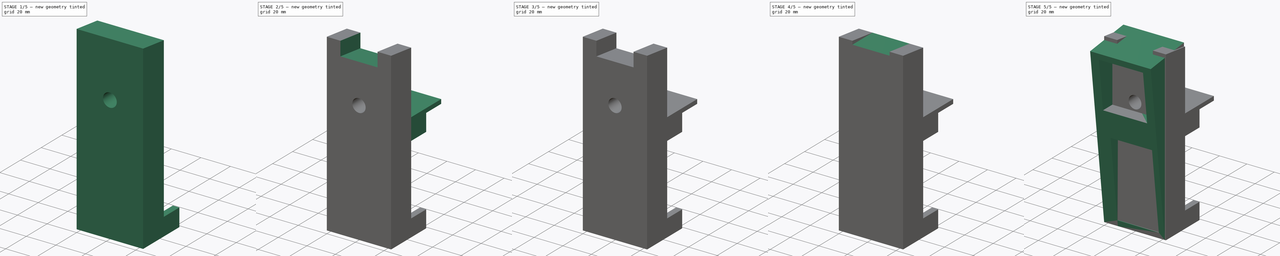
[diagram: build sequence overview — one tinted view per stage of 5, left to right]
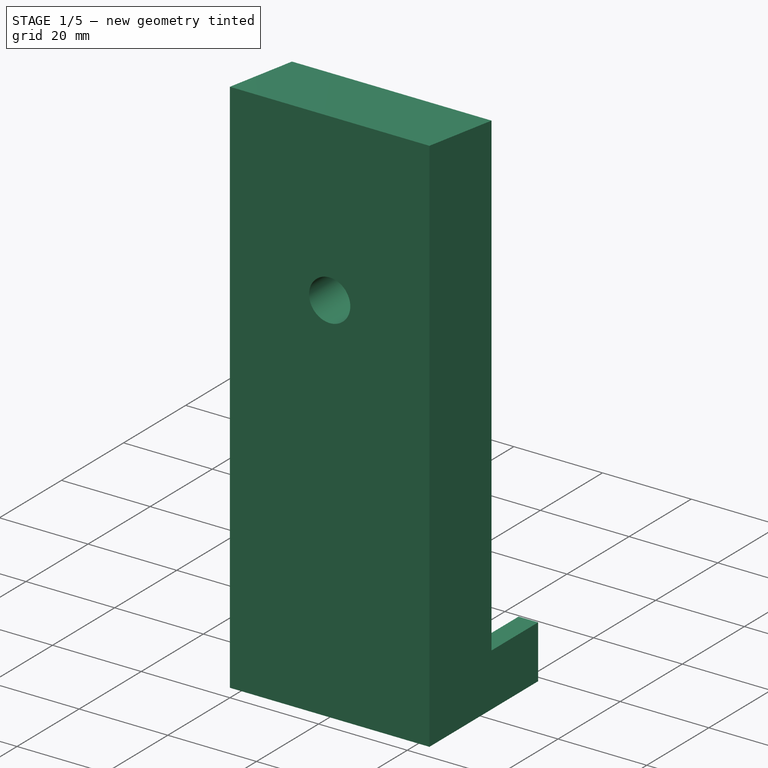
[diagram: stage 1 of 5 — iso view after this stage's code; geometry added in this stage tinted green]
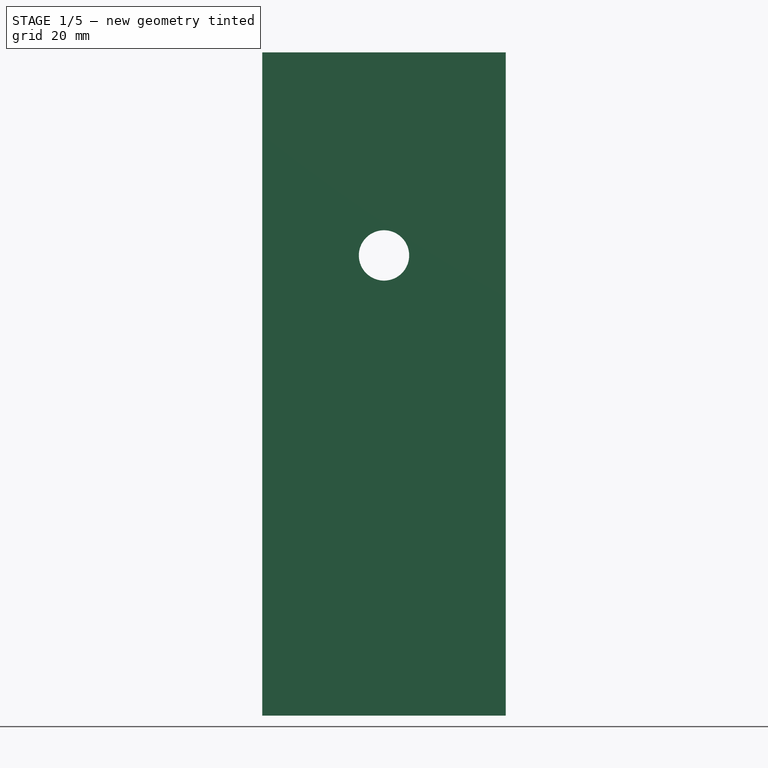
[diagram: stage 1 of 5 — front view after this stage's code; geometry added in this stage tinted green]
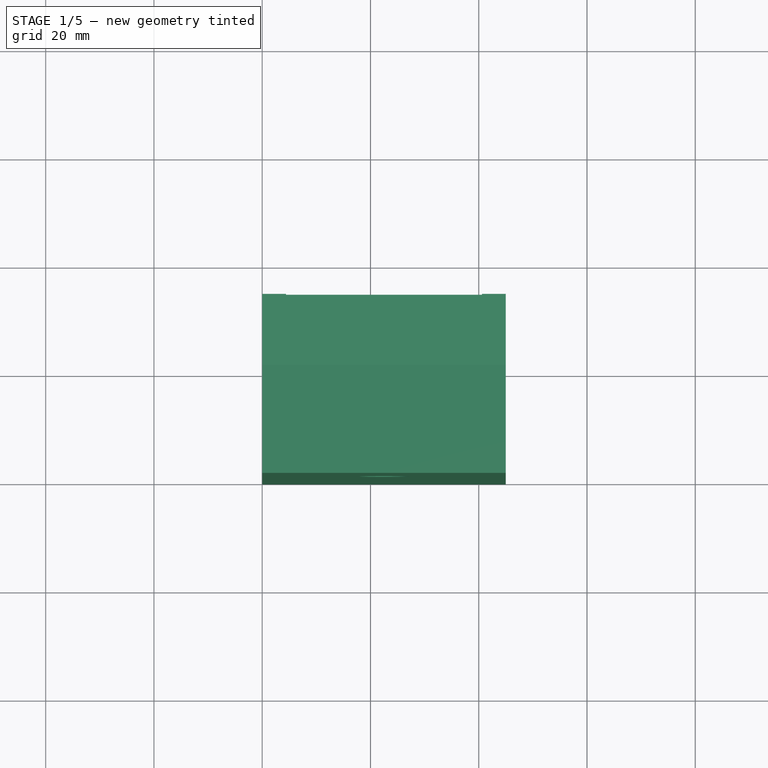
[diagram: stage 1 of 5 — top view after this stage's code; geometry added in this stage tinted green]
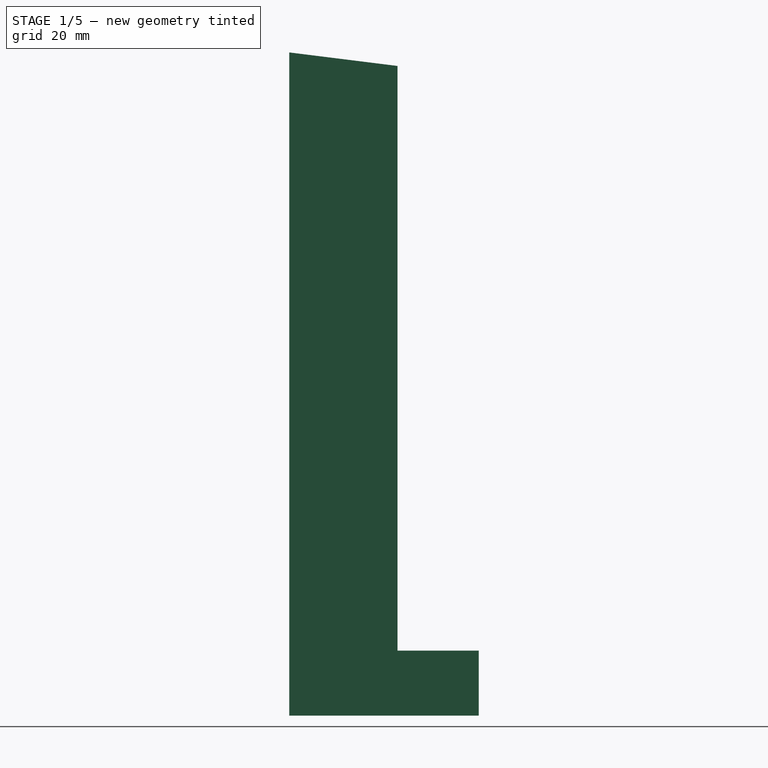
[diagram: stage 1 of 5 — right view after this stage's code; geometry added in this stage tinted green]
FCSTD DOCUMENT  (FreeCAD 0.19R24366 (Git))
Label: sailface_vertical_assembly_v3
License: All rights reserved
LicenseURL: http://en.wikipedia.org/wiki/All_rights_reserved
objects: Sketcher::SketchObject×19, PartDesign::Pad×17, PartDesign::Pocket×4, App::MeasureDistance×3, PartDesign::Body×2, App::Part×2
note: 63 computed .brp shape members not serialized (recipe doc carries the construction recipe); baked Part::Feature solids carry a one-line shape summary decoded from their .brp

FEATURE [Sketcher::SketchObject] Sketch
  FullyConstrained = true
  MapMode = 5
  Support = -> [XY_Plane001]
  sketch-geometry (4):
    g0: LineSegment StartX=0 StartY=20 StartZ=0 EndX=45 EndY=20 EndZ=0
    g1: LineSegment StartX=45 StartY=20 StartZ=0 EndX=45 EndY=0 EndZ=0
    g2: LineSegment StartX=45 StartY=0 StartZ=0 EndX=0 EndY=0 EndZ=0
    g3: LineSegment StartX=0 StartY=0 StartZ=0 EndX=0 EndY=20 EndZ=0
  constraints (11):
    c: Coincident(g0,g1)
    c: Coincident(g1,g2)
    c: Coincident(g2,g3)
    c: Coincident(g3,g0)
    c: Horizontal(g0)
    c: Horizontal(g2)
    c: Vertical(g1)
    c: Vertical(g3)
    c: Coincident(g2,g-1)
    c: DistanceX(g0,g0) = 45
    c: DistanceY(g3,g3) = 20
FEATURE [PartDesign::Pad] Pad
  Direction = (1,1,1)
  Length = 120
  Length2 = 100
  Profile = -> Sketch
  Type = 0
FEATURE [Sketcher::SketchObject] Sketch001
  ExternalGeometry = -> [Pad]
  FullyConstrained = true
  MapMode = 5
  Placement = pos=(45,0,0) rot=(0.57735,0.57735,0.57735;2.0944rad)
  Support = -> [Pad]
  sketch-geometry (3):
    g0: LineSegment StartX=0 StartY=120 StartZ=0 EndX=0 EndY=122.5 EndZ=0
    g1: LineSegment StartX=0 StartY=122.5 StartZ=0 EndX=20 EndY=120 EndZ=0
    g2: LineSegment StartX=20 StartY=120 StartZ=0 EndX=0 EndY=120 EndZ=0
  constraints (7):
    c: Coincident(g0,g-3)
    c: PointOnObject(g0,g-2)
    c: Coincident(g1,g-4)
    c: Coincident(g2,g1)
    c: Coincident(g2,g0)
    c: Coincident(g1,g0)
    c: DistanceY(g0,g0) = 2.5
FEATURE [PartDesign::Pad] Pad001
  BaseFeature = -> Pad
  Direction = (1,1,1)
  Length = 45
  Length2 = 100
  Profile = -> Sketch001
  Reversed = true
  Type = 0
FEATURE [Sketcher::SketchObject] Sketch002
  ExternalGeometry = -> [Sketch]
  FullyConstrained = true
  MapMode = 5
  Placement = pos=(0,0,0) rot=(1,0,0;1.5708rad)
  Support = -> [Pad001]
  sketch-geometry (4):
    g0: Circle CenterX=22.5 CenterY=85 CenterZ=0 NormalX=0 NormalY=0 NormalZ=1 AngleXU=0 Radius=4.65
    g1: LineSegment StartX=0 StartY=0 StartZ=0 EndX=22.5 EndY=0 EndZ=0
    g2: LineSegment StartX=22.5 StartY=0 StartZ=0 EndX=45 EndY=0 EndZ=0
    g3: LineSegment StartX=22.5 StartY=0 StartZ=0 EndX=22.5 EndY=85 EndZ=0
  constraints (10):
    c: Coincident(g1,g-1)
    c: PointOnObject(g1,g-1)
    c: Coincident(g2,g1)
    c: Coincident(g2,g-3)
    c: Equal(g2,g1)
    c: Coincident(g3,g1)
    c: Coincident(g3,g0)
    c: Vertical(g3)
    c: DistanceY(g3,g3) = 85
    c: Diameter(g0) = 9.3
FEATURE [PartDesign::Pocket] Pocket
  BaseFeature = -> Pad001
  Length = 20
  Length2 = 100
  Profile = -> Sketch002
  Type = 0
FEATURE [Sketcher::SketchObject] Sketch003
  ExternalGeometry = -> [Sketch,Pocket]
  FullyConstrained = true
  MapMode = 5
  Placement = pos=(0,20,0) rot=(0,0.707107,0.707107;3.14159rad)
  Support = -> [Pocket]
  sketch-geometry (8):
    g0: LineSegment StartX=-4.4 StartY=4 StartZ=0 EndX=-40.6 EndY=4 EndZ=0
    g1: LineSegment StartX=-4.4 StartY=4 StartZ=0 EndX=-4.4 EndY=12 EndZ=0
    g2: LineSegment StartX=-4.4 StartY=12 StartZ=0 EndX=0 EndY=12 EndZ=0
    g3: LineSegment StartX=0 StartY=12 StartZ=0 EndX=0 EndY=0 EndZ=0
    g4: LineSegment StartX=-45 StartY=0 StartZ=0 EndX=-45 EndY=12 EndZ=0
    g5: LineSegment StartX=-45 StartY=12 StartZ=0 EndX=-40.6 EndY=12 EndZ=0
    g6: LineSegment StartX=-40.6 StartY=12 StartZ=0 EndX=-40.6 EndY=4 EndZ=0
    g7: LineSegment StartX=0 StartY=0 StartZ=0 EndX=-45 EndY=0 EndZ=0
  constraints (22):
    c: Horizontal(g0)
    c: Coincident(g1,g0)
    c: Vertical(g1)
    c: PointOnObject(g2,g-2)
    c: Horizontal(g2)
    c: Coincident(g3,g-1)
    c: Coincident(g4,g-3)
    c: Vertical(g4)
    c: Coincident(g6,g0)
    c: Coincident(g4,g5)
    c: Horizontal(g5)
    c: Coincident(g6,g5)
    c: Vertical(g6)
    c: Coincident(g3,g2)
    c: DistanceX(g0,g0) = 36.2
    c: Equal(g2,g5)
    c: DistanceY(g4,g0) = 4
    c: DistanceY(g0,g5) = 8
    c: Horizontal(g1,g5)
    c: Coincident(g7,g3)
    c: Coincident(g7,g4)
    c: Coincident(g1,g2)
FEATURE [PartDesign::Pad] Pad002  label="BatteryHolderBottomPad"
  BaseFeature = -> Pocket
  Direction = (1,1,1)
  Length = 15
  Length2 = 100
  Profile = -> Sketch003
  Type = 0
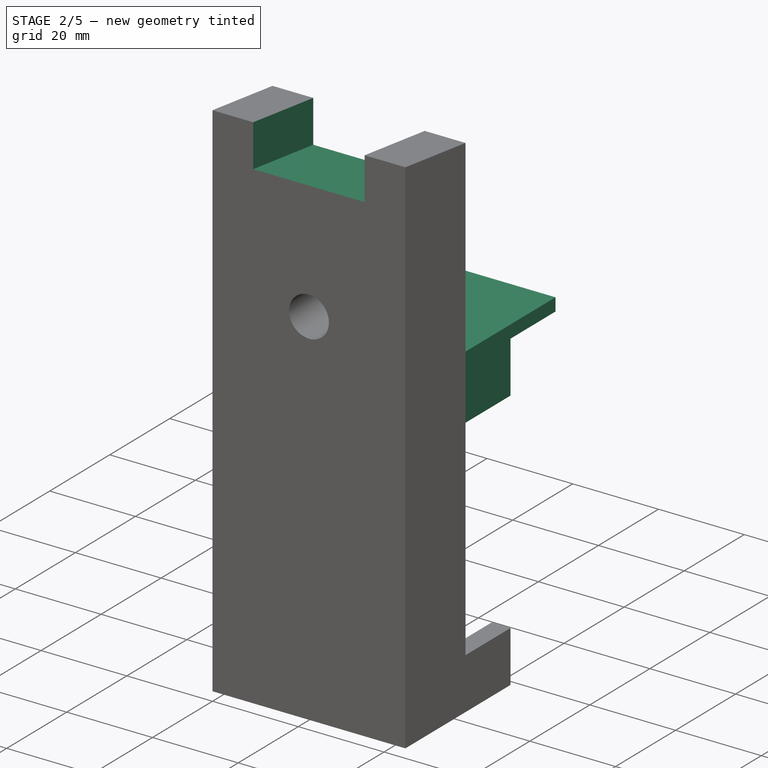
[diagram: stage 2 of 5 — iso view after this stage's code; geometry added in this stage tinted green]
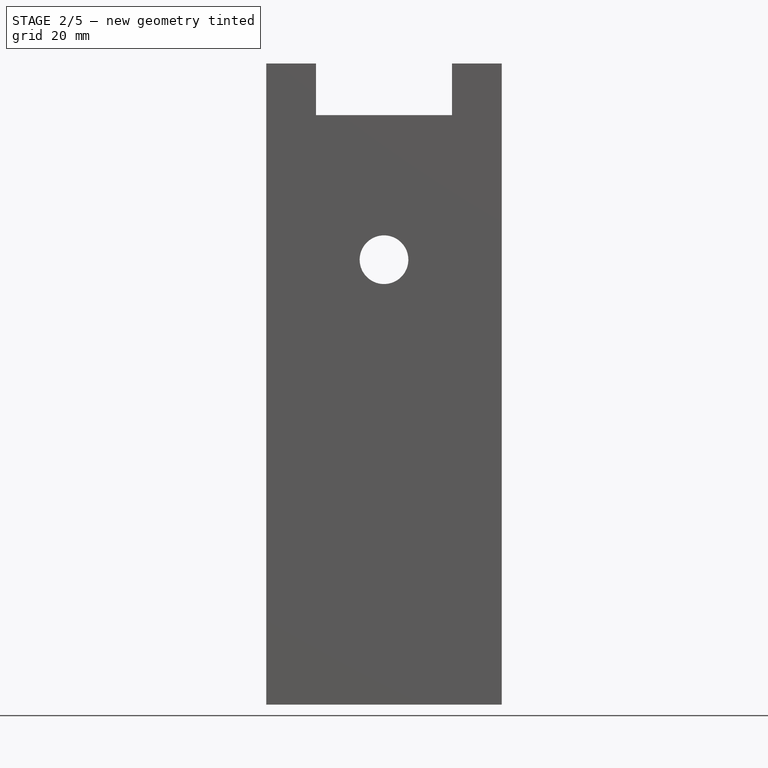
[diagram: stage 2 of 5 — front view after this stage's code; geometry added in this stage tinted green]
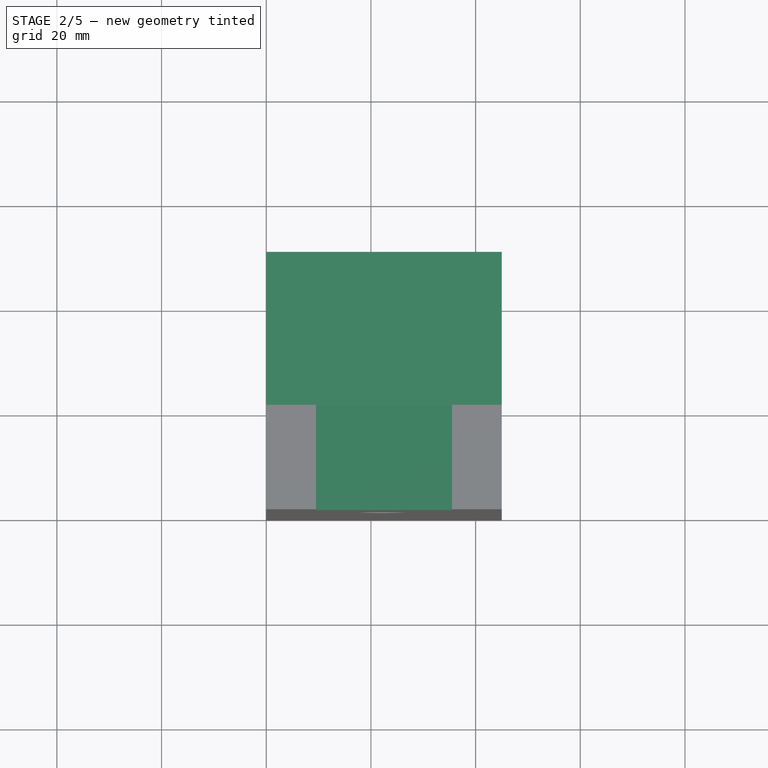
[diagram: stage 2 of 5 — top view after this stage's code; geometry added in this stage tinted green]
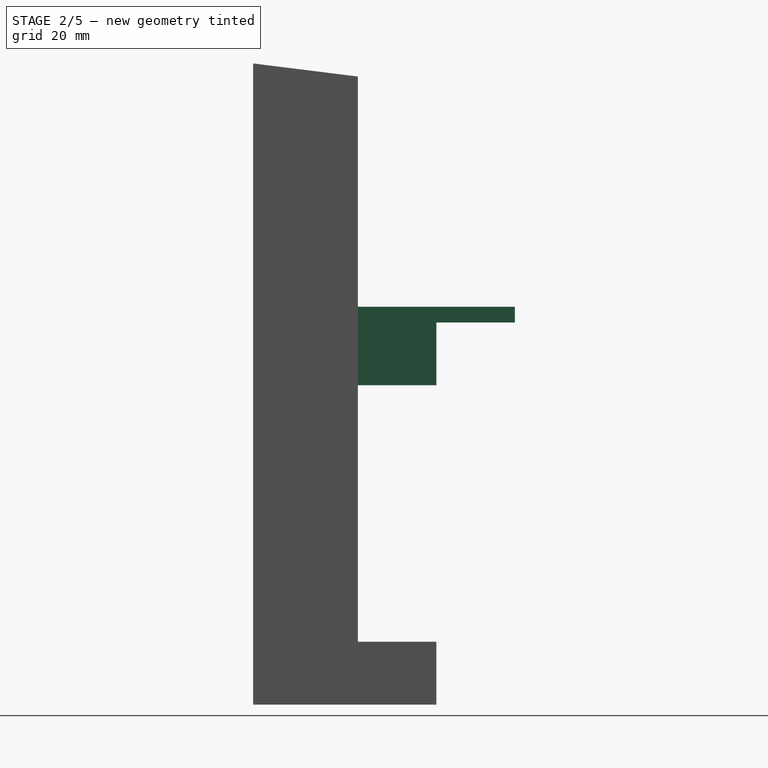
[diagram: stage 2 of 5 — right view after this stage's code; geometry added in this stage tinted green]
FEATURE [Sketcher::SketchObject] Sketch004
  ExternalGeometry = -> [Pad002]
  FullyConstrained = true
  MapMode = 5
  Placement = pos=(0,20,0) rot=(0,0.707107,0.707107;3.14159rad)
  Support = -> [Pad002]
  sketch-geometry (8):
    g0: LineSegment StartX=0 StartY=73 StartZ=0 EndX=-45 EndY=73 EndZ=0
    g1: LineSegment StartX=-45 StartY=73 StartZ=0 EndX=-45 EndY=61 EndZ=0
    g2: LineSegment StartX=-45 StartY=61 StartZ=0 EndX=-40.6 EndY=61 EndZ=0
    g3: LineSegment StartX=-40.6 StartY=61 StartZ=0 EndX=-40.6 EndY=69 EndZ=0
    g4: LineSegment StartX=-40.6 StartY=69 StartZ=0 EndX=-4.4 EndY=69 EndZ=0
    g5: LineSegment StartX=-4.4 StartY=69 StartZ=0 EndX=-4.4 EndY=61 EndZ=0
    g6: LineSegment StartX=-4.4 StartY=61 StartZ=0 EndX=0 EndY=61 EndZ=0
    g7: LineSegment StartX=0 StartY=61 StartZ=0 EndX=0 EndY=73 EndZ=0
  constraints (24):
    c: PointOnObject(g0,g-2)
    c: Horizontal(g0)
    c: PointOnObject(g0,g-3)
    c: Coincident(g1,g0)
    c: PointOnObject(g1,g-3)
    c: Horizontal(g2)
    c: Vertical(g3)
    c: Horizontal(g4)
    c: Vertical(g5)
    c: PointOnObject(g6,g-2)
    c: Coincident(g7,g6)
    c: Coincident(g7,g0)
    c: Horizontal(g6)
    c: Coincident(g6,g5)
    c: Coincident(g2,g3)
    c: Coincident(g1,g2)
    c: Coincident(g4,g5)
    c: Coincident(g4,g3)
    c: DistanceX(g4,g4) = 36.2
    c: DistanceY(g3,g3) = 8
    c: DistanceY(g3,g0) = 4
    c: Equal(g5,g3)
    c: Equal(g2,g6)
    c: DistanceY(g-4,g3) = 65
FEATURE [PartDesign::Pad] Pad003  label="BatteryHolderTopPad"
  BaseFeature = -> Pad002
  Direction = (1,1,1)
  Length = 15
  Length2 = 100
  Profile = -> Sketch004
  Type = 0
FEATURE [Sketcher::SketchObject] Sketch005
  FullyConstrained = true
  MapMode = 5
  Placement = pos=(0,0,0) rot=(1,0,0;1.5708rad)
  Support = -> [XZ_Plane003]
  sketch-geometry (4):
    g0: LineSegment StartX=0 StartY=0 StartZ=0 EndX=10 EndY=0 EndZ=0
    g1: LineSegment StartX=10 StartY=0 StartZ=0 EndX=10 EndY=73 EndZ=0
    g2: LineSegment StartX=10 StartY=73 StartZ=0 EndX=0 EndY=73 EndZ=0
    g3: LineSegment StartX=0 StartY=73 StartZ=0 EndX=0 EndY=0 EndZ=0
  constraints (11):
    c: Coincident(g0,g1)
    c: Coincident(g1,g2)
    c: Coincident(g2,g3)
    c: Coincident(g3,g0)
    c: Horizontal(g0)
    c: Horizontal(g2)
    c: Vertical(g1)
    c: Vertical(g3)
    c: Coincident(g0,g-1)
    c: DistanceX(g2,g2) = 10
    c: DistanceY(g1,g1) = 73
FEATURE [PartDesign::Pad] Pad004
  Direction = (1,1,1)
  Length = 5
  Length2 = 100
  Placement = pos=(0,0,0) rot=(1,0,0;1.5708rad)
  Profile = -> Sketch005
  Reversed = true
  Type = 0
FEATURE [Sketcher::SketchObject] Sketch010
  ExternalGeometry = -> [Pad003]
  FullyConstrained = true
  MapMode = 5
  Placement = pos=(0,15.0769,120.615) rot=(-1,0,0;0.124355rad)
  Support = -> [Pad003]
  sketch-geometry (8):
    g0: LineSegment StartX=0 StartY=4.96139 StartZ=0 EndX=9.5 EndY=4.96139 EndZ=0
    g1: LineSegment StartX=9.5 StartY=4.96139 StartZ=0 EndX=9.5 EndY=-15.1943 EndZ=0
    g2: LineSegment StartX=45 StartY=4.96139 StartZ=0 EndX=35.5 EndY=4.96139 EndZ=0
    g3: LineSegment StartX=35.5 StartY=4.96139 StartZ=0 EndX=35.5 EndY=-15.1943 EndZ=0
    g4: LineSegment StartX=35.5 StartY=-15.1943 StartZ=0 EndX=9.5 EndY=-15.1943 EndZ=0
    g5: LineSegment StartX=9.5 StartY=4.96139 StartZ=0 EndX=9.5 EndY=6.96139 EndZ=0
    g6: LineSegment StartX=9.5 StartY=6.96139 StartZ=0 EndX=35.5 EndY=6.96139 EndZ=0
    g7: LineSegment StartX=35.5 StartY=6.96139 StartZ=0 EndX=35.5 EndY=4.96139 EndZ=0
  constraints (22):
    c: Coincident(g0,g-3)
    c: Horizontal(g0)
    c: Vertical(g1)
    c: Horizontal(g2)
    c: Vertical(g3)
    c: Coincident(g2,g3)
    c: Coincident(g0,g1)
    c: Equal(g0,g2)
    c: DistanceX(g2,g2) = 9.5
    c: Horizontal(g4)
    c: Coincident(g5,g1)
    c: Vertical(g5)
    c: Horizontal(g6)
    c: Coincident(g7,g6)
    c: Coincident(g7,g3)
    c: Vertical(g7)
    c: Coincident(g5,g6)
    c: DistanceY(g5,g5) = 2
    c: Coincident(g4,g1)
    c: Coincident(g3,g4)
    c: Horizontal(g3,g-5)
    c: Coincident(g2,g-6)
FEATURE [PartDesign::Pocket] Pocket001
  BaseFeature = -> Pad003
  Length = 9.8
  Length2 = 100
  Profile = -> Sketch010
  Type = 0
FEATURE [PartDesign::Body] Body001  label="BatteryRearMotorHolder001"
  Group = -> [Sketch005,Pad004,Sketch006,Pad005,Pad006,Sketch007,Pad007,Pad008,Sketch008,Pad009,Sketch009,Pad010,Sketch011,Pad011,Sketch013,Pad012,Sketch014,Pad013,Sketch015,Pad014,Sketch016,Pad015,Sketch017,Pocket002,Sketch018,Pocket003]
  Origin = -> Origin003
  Tip = -> Pocket003
FEATURE [App::Part] Part001  label="BatteryRearMotorHolder"
  Group = -> [Body001]
  Origin = -> Origin002
FEATURE [App::MeasureDistance] Distance001  label="Distance: 44.97 mm"
  Distance = 44.9739
  P1 = (44.9739,20,120)
  P2 = (0,19.9982,120)
FEATURE [App::MeasureDistance] Distance002  label="Distance: 20.14 mm"
  Distance = 20.1392
  P1 = (0,0,122.5)
  P2 = (0,19.9837,120.002)
FEATURE [Sketcher::SketchObject] Sketch019
  ExternalGeometry = -> [Pocket001]
  FullyConstrained = true
  MapMode = 5
  Placement = pos=(0,20,0) rot=(0,0.707107,0.707107;3.14159rad)
  Support = -> [Pocket001]
  sketch-geometry (4):
    g0: LineSegment StartX=-45 StartY=73 StartZ=0 EndX=0 EndY=73 EndZ=0
    g1: LineSegment StartX=0 StartY=73 StartZ=0 EndX=0 EndY=76 EndZ=0
    g2: LineSegment StartX=0 StartY=76 StartZ=0 EndX=-45 EndY=76 EndZ=0
    g3: LineSegment StartX=-45 StartY=76 StartZ=0 EndX=-45 EndY=73 EndZ=0
  constraints (11):
    c: Coincident(g0,g1)
    c: Coincident(g1,g2)
    c: Coincident(g2,g3)
    c: Coincident(g3,g0)
    c: Horizontal(g0)
    c: Horizontal(g2)
    c: Vertical(g1)
    c: Vertical(g3)
    c: Coincident(g0,g-3)
    c: PointOnObject(g1,g-2)
    c: DistanceY(g3,g3) = 3
FEATURE [PartDesign::Pad] Pad016
  BaseFeature = -> Pocket001
  Direction = (1,1,1)
  Length = 30
  Length2 = 100
  Profile = -> Sketch019
  Type = 0
FEATURE [PartDesign::Body] Body
  Group = -> [Sketch,Pad,Sketch001,Pad001,Sketch002,Pocket,Sketch003,Pad002,Sketch004,Pad003,Sketch010,Pocket001,Sketch019,Pad016]
  Origin = -> Origin001
  Tip = -> Pad016
FEATURE [App::Part] Part  label="VerticalConnector"
  Group = -> [Body]
  Origin = -> Origin
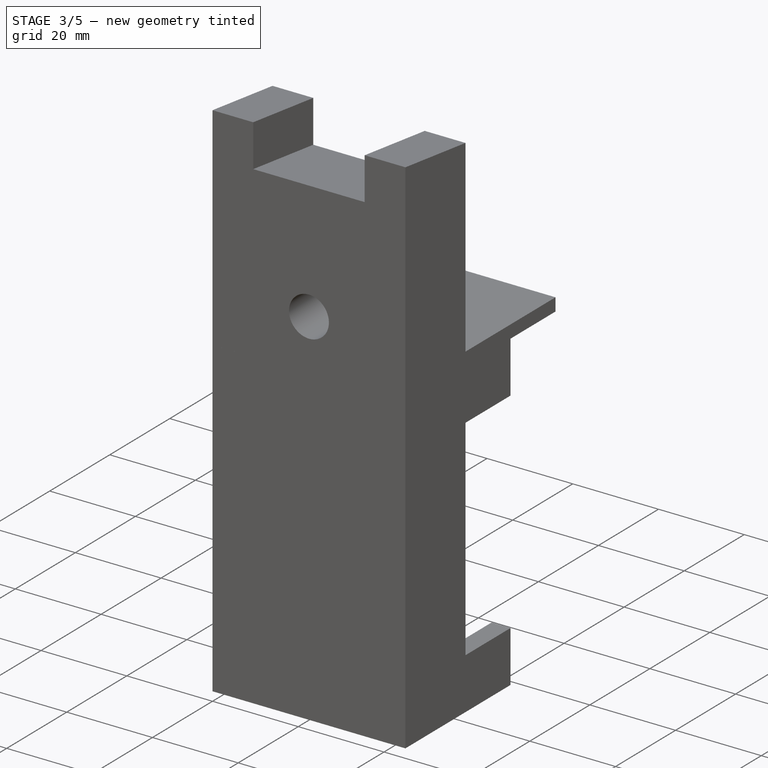
[diagram: stage 3 of 5 — iso view after this stage's code; geometry added in this stage tinted green]
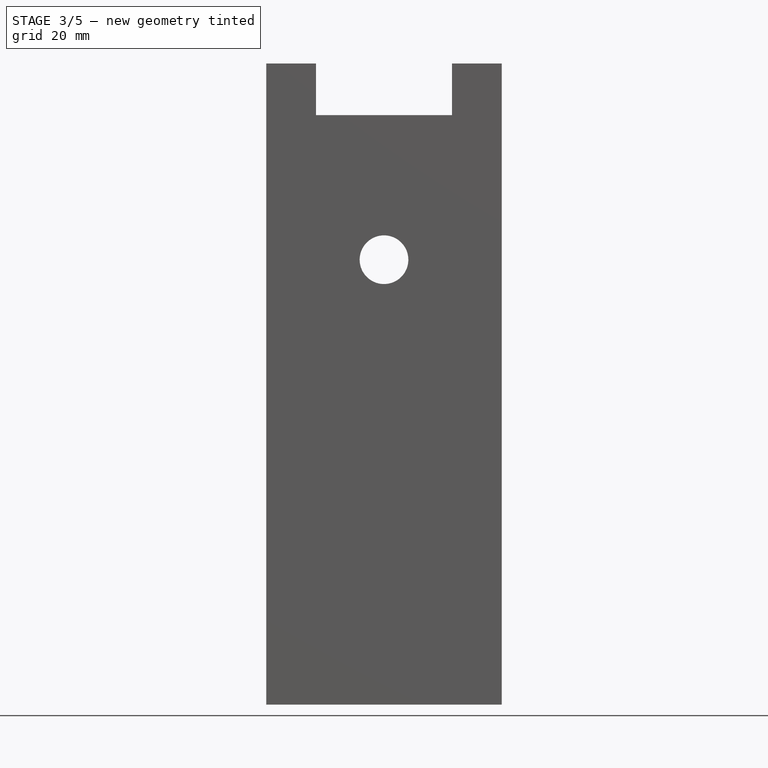
[diagram: stage 3 of 5 — front view after this stage's code; geometry added in this stage tinted green]
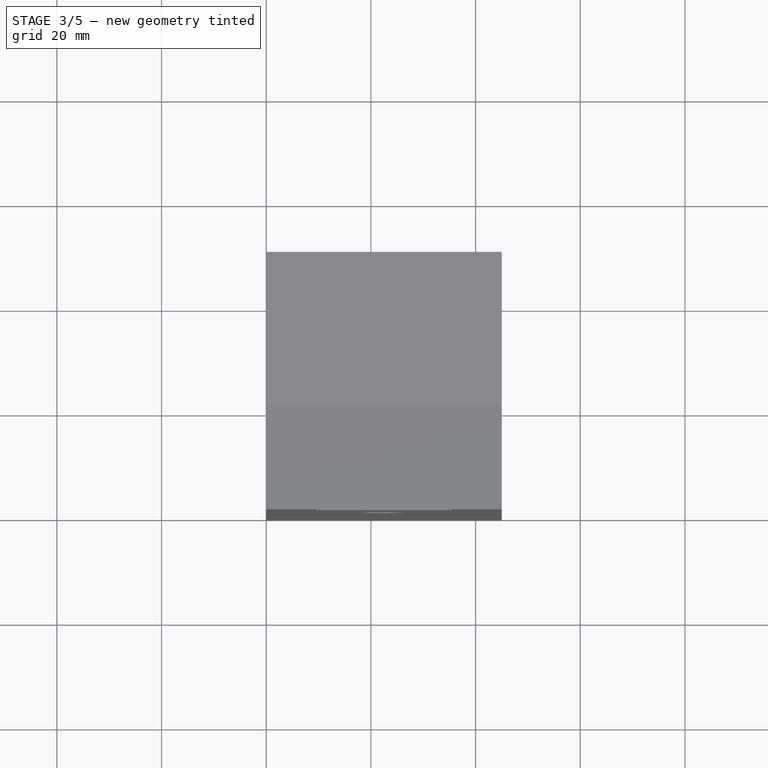
[diagram: stage 3 of 5 — top view after this stage's code; geometry added in this stage tinted green]
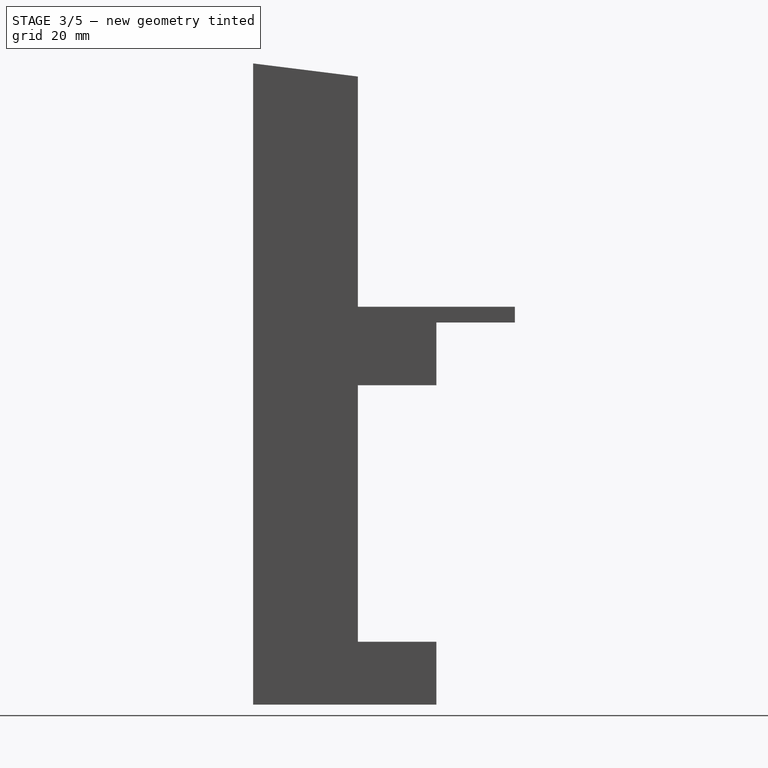
[diagram: stage 3 of 5 — right view after this stage's code; geometry added in this stage tinted green]
FEATURE [Sketcher::SketchObject] Sketch006
  ExternalGeometry = -> [Pad004]
  FullyConstrained = true
  MapMode = 5
  Placement = pos=(0,5,-1.1e-15) rot=(-1,0,0;1.5708rad)
  Support = -> [Pad004]
  sketch-geometry (9):
    g0: LineSegment StartX=0 StartY=0 StartZ=0 EndX=10 EndY=0 EndZ=0
    g1: LineSegment StartX=10 StartY=0 StartZ=0 EndX=44.2 EndY=0 EndZ=0
    g2: LineSegment StartX=0 StartY=-12 StartZ=0 EndX=0 EndY=0 EndZ=0
    g3: LineSegment StartX=0 StartY=-12 StartZ=0 EndX=4 EndY=-12 EndZ=0
    g4: LineSegment StartX=4 StartY=-12 StartZ=0 EndX=4 EndY=-4 EndZ=0
    g5: LineSegment StartX=4 StartY=-4 StartZ=0 EndX=40.2 EndY=-4 EndZ=0
    g6: LineSegment StartX=40.2 StartY=-4 StartZ=0 EndX=40.2 EndY=-12 EndZ=0
    g7: LineSegment StartX=40.2 StartY=-12 StartZ=0 EndX=44.2 EndY=-12 EndZ=0
    g8: LineSegment StartX=44.2 StartY=-12 StartZ=0 EndX=44.2 EndY=0 EndZ=0
  constraints (25):
    c: Coincident(g0,g-1)
    c: Coincident(g0,g-3)
    c: Horizontal(g1)
    c: Vertical(g2)
    c: Coincident(g2,g0)
    c: Coincident(g0,g1)
    c: Coincident(g3,g2)
    c: Horizontal(g3)
    c: Vertical(g4)
    c: Horizontal(g5)
    c: Vertical(g6)
    c: Horizontal(g7)
    c: Coincident(g8,g1)
    c: Vertical(g8)
    c: Coincident(g5,g6)
    c: Coincident(g6,g7)
    c: Coincident(g4,g5)
    c: Coincident(g3,g4)
    c: Equal(g6,g4)
    c: DistanceY(g6,g6) = 8
    c: Coincident(g7,g8)
    c: DistanceX(g4,g5) = 36.2
    c: DistanceY(g4,g0) = 4
    c: Equal(g3,g7)
    c: DistanceX(g6,g7) = 4
FEATURE [PartDesign::Pad] Pad005
  BaseFeature = -> Pad004
  Direction = (1,1,1)
  Length = 15
  Length2 = 100
  Placement = pos=(0,0,0) rot=(1,0,0;1.5708rad)
  Profile = -> Sketch006
  Type = 0
FEATURE [PartDesign::Pad] Pad006
  BaseFeature = -> Pad005
  Direction = (1,1,1)
  Length = 5
  Length2 = 100
  Placement = pos=(0,0,0) rot=(1,0,0;1.5708rad)
  Profile = -> Sketch006
  Reversed = true
  Type = 0
FEATURE [Sketcher::SketchObject] Sketch007
  ExternalGeometry = -> [Pad004]
  FullyConstrained = true
  MapMode = 5
  Placement = pos=(0,5,-1.1e-15) rot=(-1,0,0;1.5708rad)
  Support = -> [Pad004]
  sketch-geometry (8):
    g0: LineSegment StartX=0 StartY=-73 StartZ=0 EndX=0 EndY=-61 EndZ=0
    g1: LineSegment StartX=0 StartY=-61 StartZ=0 EndX=4 EndY=-61 EndZ=0
    g2: LineSegment StartX=4 StartY=-61 StartZ=0 EndX=4 EndY=-69 EndZ=0
    g3: LineSegment StartX=4 StartY=-69 StartZ=0 EndX=40.2 EndY=-69 EndZ=0
    g4: LineSegment StartX=40.2 StartY=-69 StartZ=0 EndX=40.2 EndY=-61 EndZ=0
    g5: LineSegment StartX=40.2 StartY=-61 StartZ=0 EndX=44.2 EndY=-61 EndZ=0
    g6: LineSegment StartX=44.2 StartY=-61 StartZ=0 EndX=44.2 EndY=-73 EndZ=0
    g7: LineSegment StartX=0 StartY=-73 StartZ=0 EndX=44.2 EndY=-73 EndZ=0
  constraints (23):
    c: Coincident(g0,g-4)
    c: Vertical(g0)
    c: Coincident(g1,g0)
    c: Horizontal(g1)
    c: Vertical(g2)
    c: Horizontal(g3)
    c: Coincident(g4,g3)
    c: Vertical(g4)
    c: Vertical(g6)
    c: DistanceX(g3,g3) = 36.2
    c: Coincident(g3,g2)
    c: Coincident(g2,g1)
    c: Coincident(g5,g4)
    c: Coincident(g6,g5)
    c: Horizontal(g5)
    c: Coincident(g7,g0)
    c: Coincident(g7,g6)
    c: Horizontal(g7)
    c: DistanceX(g5,g5) = 4
    c: DistanceY(g2,g0) = 8
    c: DistanceX(g0,g2) = 4
    c: DistanceY(g6,g3) = 4
    c: Horizontal(g4,g1)
FEATURE [PartDesign::Pad] Pad007
  BaseFeature = -> Pad006
  Direction = (1,1,1)
  Length = 15
  Length2 = 100
  Placement = pos=(0,0,0) rot=(1,0,0;1.5708rad)
  Profile = -> Sketch007
  Type = 0
FEATURE [PartDesign::Pad] Pad008
  BaseFeature = -> Pad007
  Direction = (1,1,1)
  Length = 5
  Length2 = 100
  Placement = pos=(0,0,0) rot=(1,0,0;1.5708rad)
  Profile = -> Sketch007
  Reversed = true
  Type = 0
FEATURE [Sketcher::SketchObject] Sketch008
  ExternalGeometry = -> [Pad008]
  FullyConstrained = true
  MapMode = 5
  Placement = pos=(0,20,-4.4e-15) rot=(-1,0,0;1.5708rad)
  Support = -> [Pad008]
  sketch-geometry (4):
    g0: LineSegment StartX=0 StartY=-73 StartZ=0 EndX=44.2 EndY=-73 EndZ=0
    g1: LineSegment StartX=44.2 StartY=-73 StartZ=0 EndX=44.2 EndY=-69 EndZ=0
    g2: LineSegment StartX=44.2 StartY=-69 StartZ=0 EndX=0 EndY=-69 EndZ=0
    g3: LineSegment StartX=0 StartY=-69 StartZ=0 EndX=0 EndY=-73 EndZ=0
  constraints (11):
    c: Coincident(g0,g1)
    c: Coincident(g1,g2)
    c: Coincident(g2,g3)
    c: Coincident(g3,g0)
    c: Horizontal(g0)
    c: Horizontal(g2)
    c: Vertical(g1)
    c: Vertical(g3)
    c: PointOnObject(g0,g-2)
    c: Coincident(g0,g-3)
    c: Horizontal(g-4,g1)
FEATURE [PartDesign::Pad] Pad009
  BaseFeature = -> Pad008
  Direction = (1,1,1)
  Length = 10
  Length2 = 100
  Placement = pos=(0,0,0) rot=(1,0,0;1.5708rad)
  Profile = -> Sketch008
  Type = 0
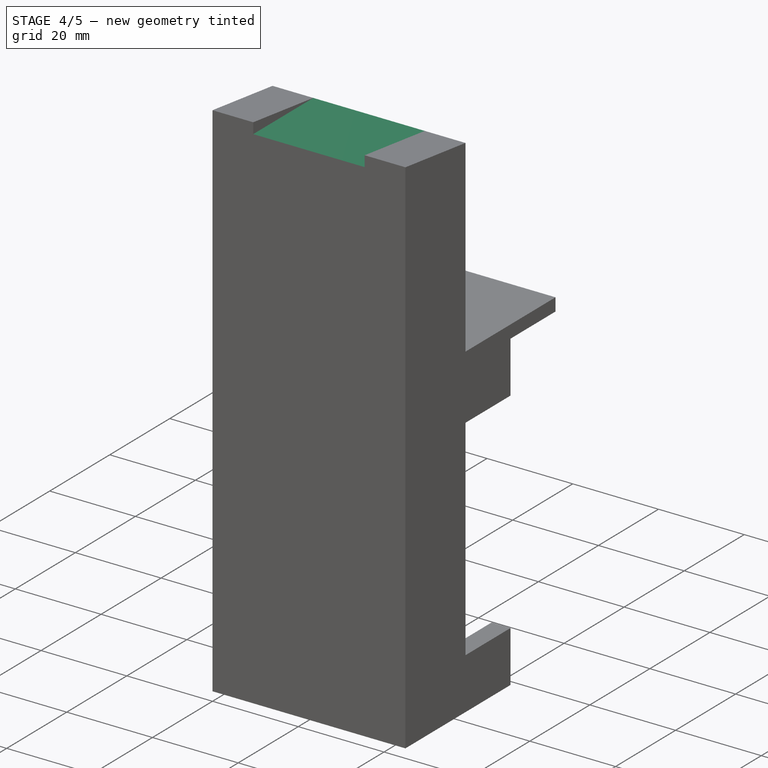
[diagram: stage 4 of 5 — iso view after this stage's code; geometry added in this stage tinted green]
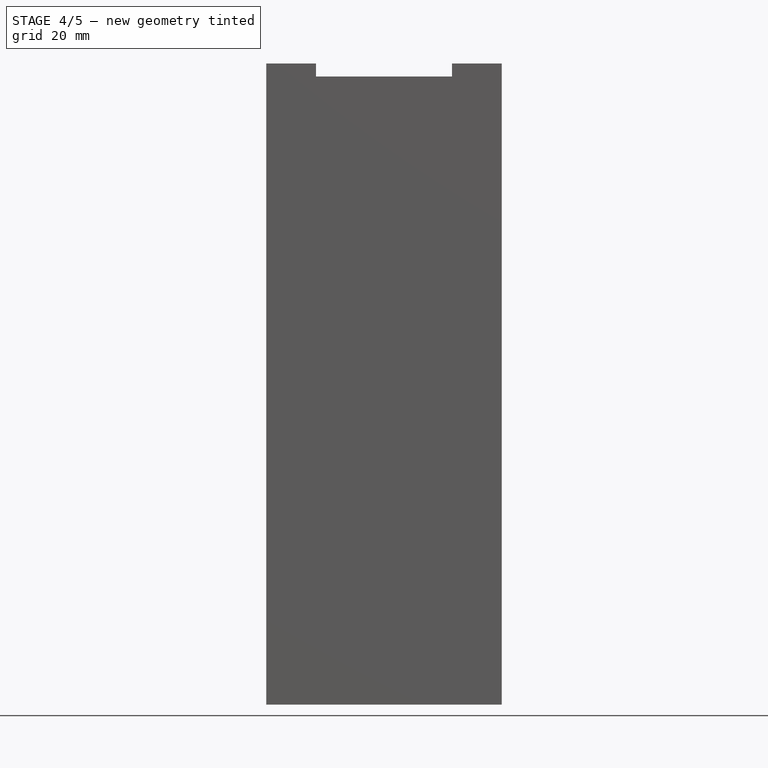
[diagram: stage 4 of 5 — front view after this stage's code; geometry added in this stage tinted green]
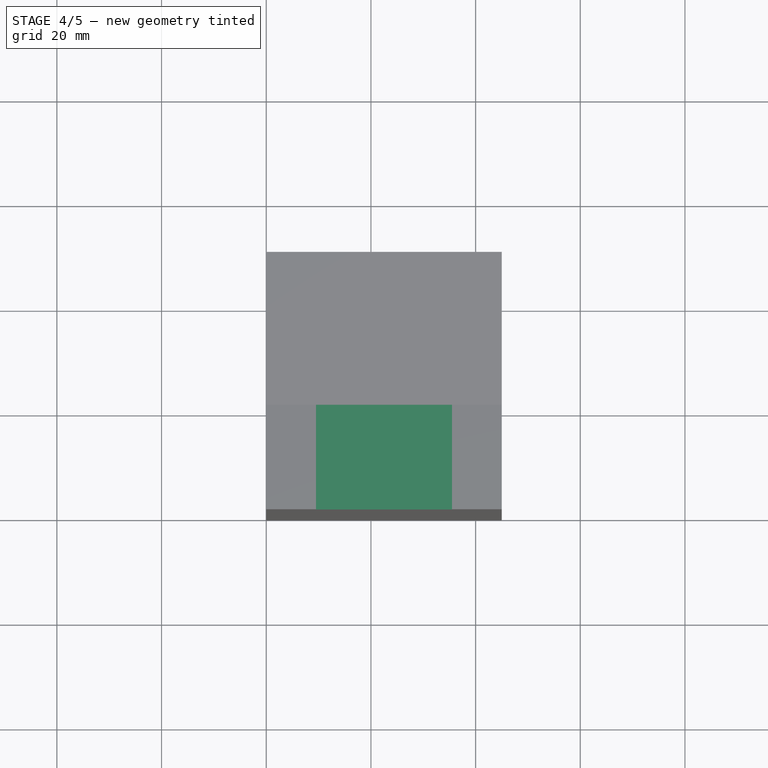
[diagram: stage 4 of 5 — top view after this stage's code; geometry added in this stage tinted green]
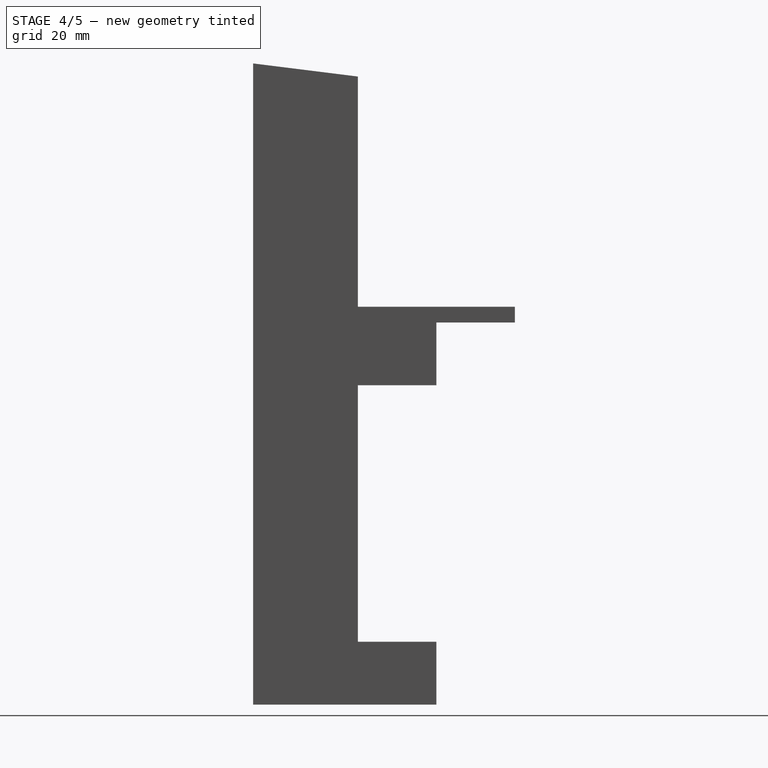
[diagram: stage 4 of 5 — right view after this stage's code; geometry added in this stage tinted green]
FEATURE [Sketcher::SketchObject] Sketch009
  ExternalGeometry = -> [Pad009]
  FullyConstrained = true
  MapMode = 5
  Placement = pos=(0,7.6e-15,69) rot=(1,0,0;3.14159rad)
  Support = -> [Pad009]
  sketch-geometry (4):
    g0: LineSegment StartX=10 StartY=3.6e-15 StartZ=0 EndX=40.2 EndY=0 EndZ=0
    g1: LineSegment StartX=40.2 StartY=0 StartZ=0 EndX=40.2 EndY=-5 EndZ=0
    g2: LineSegment StartX=40.2 StartY=-5 StartZ=0 EndX=10 EndY=-5 EndZ=0
    g3: LineSegment StartX=10 StartY=-5 StartZ=0 EndX=10 EndY=3.6e-15 EndZ=0
  constraints (9):
    c: Coincident(g0,g1)
    c: Coincident(g1,g2)
    c: Coincident(g2,g3)
    c: Coincident(g3,g0)
    c: Horizontal(g2)
    c: Vertical(g3)
    c: Coincident(g0,g-4)
    c: Coincident(g0,g-7)
    c: Coincident(g-8,g1)
FEATURE [PartDesign::Pad] Pad010
  BaseFeature = -> Pad009
  Direction = (1,1,1)
  Length = 8
  Length2 = 100
  Placement = pos=(0,0,0) rot=(1,0,0;1.5708rad)
  Profile = -> Sketch009
  Type = 0
FEATURE [Sketcher::SketchObject] Sketch011
  ExternalGeometry = -> [Pad009]
  FullyConstrained = true
  MapMode = 5
  Placement = pos=(0,1.13e-14,12) rot=(0,0,1;3.14159rad)
  Support = -> [Pad009]
  sketch-geometry (4):
    g0: LineSegment StartX=-44.2 StartY=6.05e-14 StartZ=0 EndX=-40.2 EndY=6.05e-14 EndZ=0
    g1: LineSegment StartX=-40.2 StartY=6.05e-14 StartZ=0 EndX=-40.2 EndY=-5 EndZ=0
    g2: LineSegment StartX=-40.2 StartY=-5 StartZ=0 EndX=-44.2 EndY=-5 EndZ=0
    g3: LineSegment StartX=-44.2 StartY=-5 StartZ=0 EndX=-44.2 EndY=6.04e-14 EndZ=0
  constraints (10):
    c: Coincident(g2,g3)
    c: Horizontal(g0)
    c: Horizontal(g2)
    c: Vertical(g1)
    c: Vertical(g3)
    c: Coincident(g3,g0)
    c: Coincident(g0,g-3)
    c: Coincident(g1,g0)
    c: Coincident(g-6,g2)
    c: Coincident(g2,g1)
FEATURE [PartDesign::Pad] Pad011
  BaseFeature = -> Pad010
  Direction = (1,1,1)
  Length = 49
  Length2 = 100
  Placement = pos=(0,0,0) rot=(1,0,0;1.5708rad)
  Profile = -> Sketch011
  Type = 0
FEATURE [Sketcher::SketchObject] Sketch013
  ExternalGeometry = -> [Sketch007,Pad011]
  FullyConstrained = true
  MapMode = 5
  Placement = pos=(0,6.7e-15,61) rot=(1,0,0;3.14159rad)
  Support = -> [Pad011]
  sketch-geometry (4):
    g0: LineSegment StartX=40.2 StartY=-5 StartZ=0 EndX=44.2 EndY=-5 EndZ=0
    g1: LineSegment StartX=44.2 StartY=-5 StartZ=0 EndX=44.2 EndY=-20 EndZ=0
    g2: LineSegment StartX=44.2 StartY=-20 StartZ=0 EndX=40.2 EndY=-20 EndZ=0
    g3: LineSegment StartX=40.2 StartY=-20 StartZ=0 EndX=40.2 EndY=-5 EndZ=0
  constraints (10):
    c: Coincident(g0,g1)
    c: Coincident(g1,g2)
    c: Coincident(g2,g3)
    c: Coincident(g3,g0)
    c: Horizontal(g0)
    c: Horizontal(g2)
    c: Vertical(g1)
    c: Vertical(g3)
    c: Coincident(g0,g-4)
    c: Coincident(g1,g-5)
FEATURE [PartDesign::Pad] Pad012
  BaseFeature = -> Pad011
  Direction = (1,1,1)
  Length = 49
  Length2 = 100
  Placement = pos=(0,0,0) rot=(1,0,0;1.5708rad)
  Profile = -> Sketch013
  Type = 0
FEATURE [Sketcher::SketchObject] Sketch014
  ExternalGeometry = -> [Pad012]
  FullyConstrained = true
  MapMode = 5
  Placement = pos=(0,8e-15,73) rot=(0,0,1;3.14159rad)
  Support = -> [Pad012]
  sketch-geometry (4):
    g0: LineSegment StartX=-44.2 StartY=-20 StartZ=0 EndX=0 EndY=-20 EndZ=0
    g1: LineSegment StartX=0 StartY=-20 StartZ=0 EndX=0 EndY=0 EndZ=0
    g2: LineSegment StartX=0 StartY=0 StartZ=0 EndX=-44.2 EndY=0 EndZ=0
    g3: LineSegment StartX=-44.2 StartY=0 StartZ=0 EndX=-44.2 EndY=-20 EndZ=0
  constraints (10):
    c: Coincident(g1,g2)
    c: Coincident(g2,g3)
    c: Coincident(g3,g0)
    c: Horizontal(g0)
    c: Horizontal(g2)
    c: Vertical(g1)
    c: Vertical(g3)
    c: Coincident(g0,g-3)
    c: Coincident(g1,g-1)
    c: Coincident(g0,g1)
FEATURE [PartDesign::Pad] Pad013
  BaseFeature = -> Pad012
  Direction = (1,1,1)
  Length = 47
  Length2 = 100
  Placement = pos=(0,0,0) rot=(1,0,0;1.5708rad)
  Profile = -> Sketch014
  Type = 0
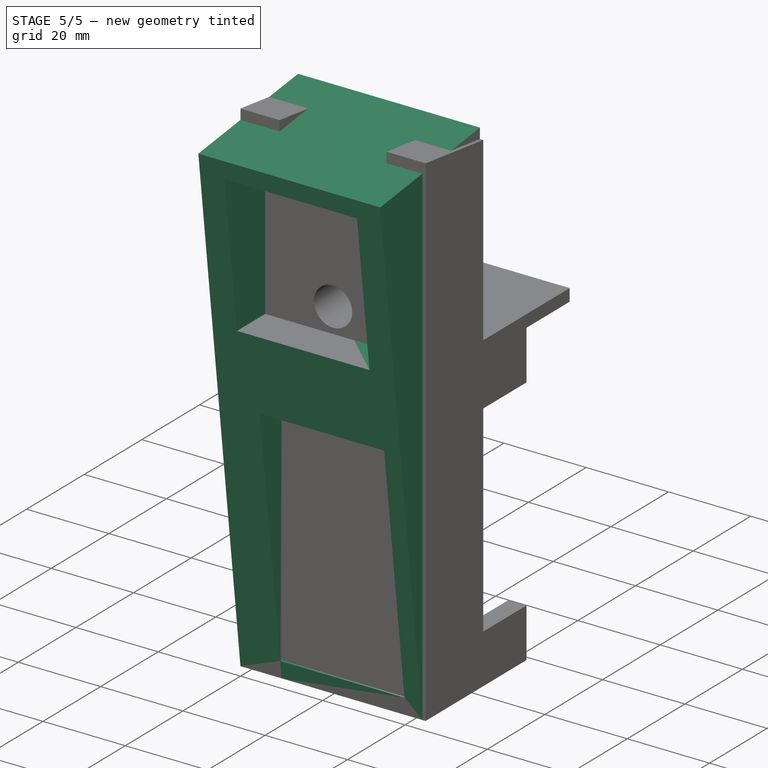
[diagram: stage 5 of 5 — iso view after this stage's code; geometry added in this stage tinted green]
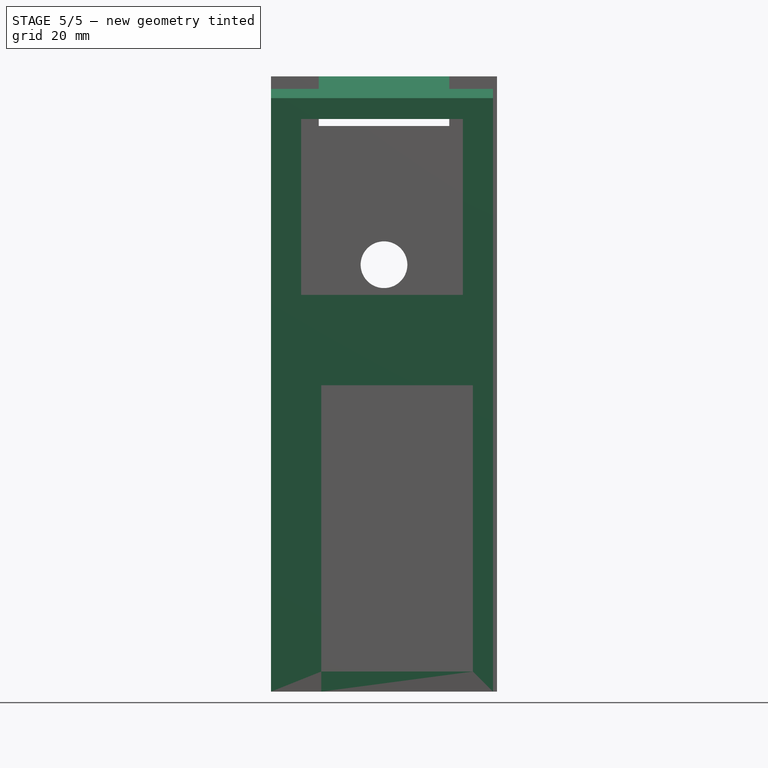
[diagram: stage 5 of 5 — front view after this stage's code; geometry added in this stage tinted green]
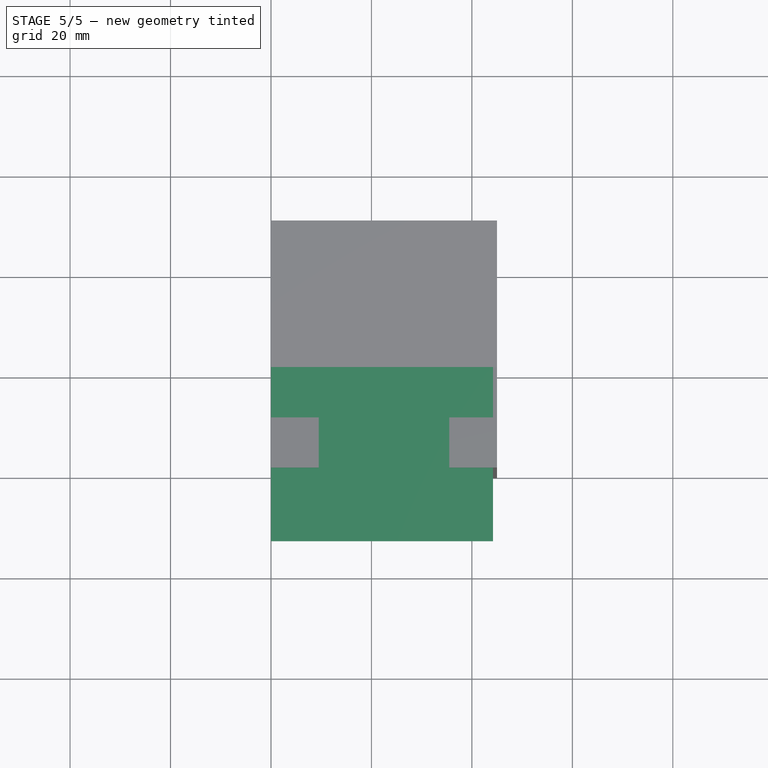
[diagram: stage 5 of 5 — top view after this stage's code; geometry added in this stage tinted green]
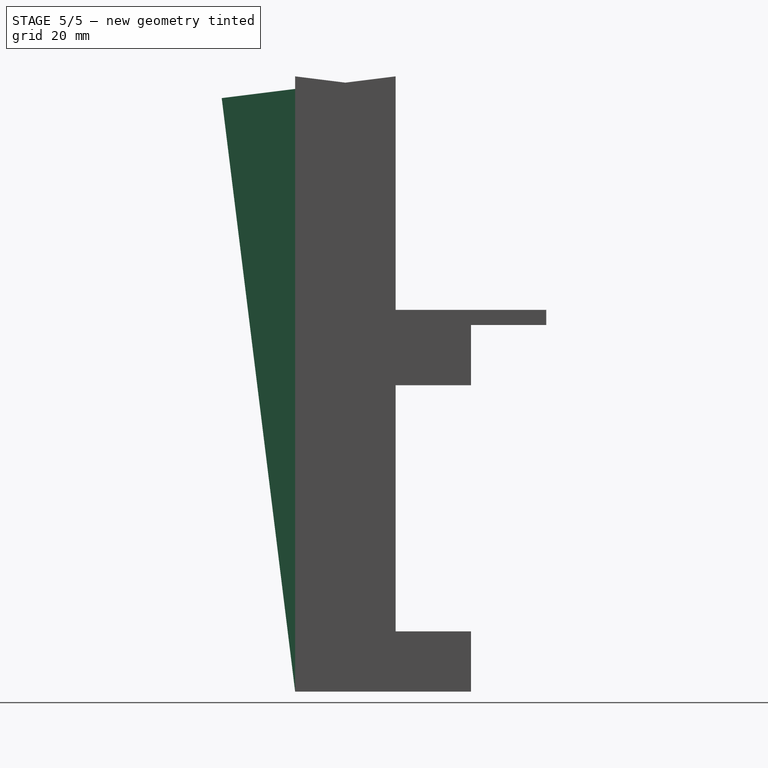
[diagram: stage 5 of 5 — right view after this stage's code; geometry added in this stage tinted green]
FEATURE [App::MeasureDistance] Distance  label="Distance: 120.00 mm"
  Distance = 120
  P1 = (0,-1.43051e-05,120)
  P2 = (0,0,0)
FEATURE [Sketcher::SketchObject] Sketch015
  ExternalGeometry = -> [Pad013]
  FullyConstrained = true
  MapMode = 5
  Placement = pos=(0,0,0) rot=(0.707107,0,-0.707107;3.14159rad)
  Support = -> [Pad013]
  sketch-geometry (3):
    g0: LineSegment StartX=-120 StartY=-9.24e-14 StartZ=0 EndX=-120 EndY=-20 EndZ=0
    g1: LineSegment StartX=-120 StartY=-20 StartZ=0 EndX=-122.5 EndY=-20 EndZ=0
    g2: LineSegment StartX=-122.5 StartY=-20 StartZ=0 EndX=-120 EndY=-9.24e-14 EndZ=0
  constraints (7):
    c: Coincident(g0,g-4)
    c: Coincident(g1,g0)
    c: Horizontal(g1)
    c: Coincident(g2,g0)
    c: DistanceX(g1,g1) = 2.5
    c: Coincident(g0,g-3)
    c: Coincident(g1,g2)
FEATURE [PartDesign::Pad] Pad014
  BaseFeature = -> Pad013
  Direction = (1,1,1)
  Length = 44.2
  Length2 = 100
  Placement = pos=(0,0,0) rot=(1,0,0;1.5708rad)
  Profile = -> Sketch015
  Reversed = true
  Type = 0
FEATURE [Sketcher::SketchObject] Sketch016
  ExternalGeometry = -> [Pad014]
  FullyConstrained = true
  MapMode = 5
  Placement = pos=(0,0,0) rot=(0.707107,0,-0.707107;3.14159rad)
  Support = -> [Pad014]
  sketch-geometry (4):
    g0: LineSegment StartX=-120 StartY=-1.061e-13 StartZ=0 EndX=0 EndY=0 EndZ=0
    g1: LineSegment StartX=-120 StartY=-1.061e-13 StartZ=0 EndX=-118.173 EndY=14.62 EndZ=0
    g2: LineSegment StartX=-118.173 StartY=14.62 StartZ=0 EndX=0 EndY=0 EndZ=0
    g3: LineSegment StartX=-122.5 StartY=-20 StartZ=0 EndX=-120 EndY=-1.066e-13 EndZ=0
  constraints (9):
    c: Coincident(g0,g-3)
    c: Coincident(g0,g-1)
    c: Coincident(g1,g0)
    c: Coincident(g2,g1)
    c: Coincident(g2,g0)
    c: DistanceY(g1,g1) = 14.62
    c: Coincident(g3,g-4)
    c: Coincident(g0,g3)
    c: Parallel(g1,g3)
FEATURE [PartDesign::Pad] Pad015
  BaseFeature = -> Pad014
  Direction = (1,1,1)
  Length = 44.2
  Length2 = 100
  Placement = pos=(0,0,0) rot=(1,0,0;1.5708rad)
  Profile = -> Sketch016
  Reversed = true
  Type = 0
FEATURE [Sketcher::SketchObject] Sketch017
  ExternalGeometry = -> [Pad015]
  FullyConstrained = true
  MapMode = 5
  Placement = pos=(0,-5e-16,0) rot=(-1,0,0;1.5708rad)
  Support = -> [Pad015]
  sketch-geometry (4):
    g0: LineSegment StartX=10 StartY=-61 StartZ=0 EndX=40.2 EndY=-61 EndZ=0
    g1: LineSegment StartX=40.2 StartY=-61 StartZ=0 EndX=40.2 EndY=-4 EndZ=0
    g2: LineSegment StartX=40.2 StartY=-4 StartZ=0 EndX=10 EndY=-4 EndZ=0
    g3: LineSegment StartX=10 StartY=-4 StartZ=0 EndX=10 EndY=-61 EndZ=0
  constraints (10):
    c: Coincident(g0,g1)
    c: Coincident(g1,g2)
    c: Coincident(g2,g3)
    c: Coincident(g3,g0)
    c: Horizontal(g0)
    c: Horizontal(g2)
    c: Vertical(g1)
    c: Vertical(g3)
    c: Coincident(g0,g-4)
    c: Coincident(g1,g-3)
FEATURE [PartDesign::Pocket] Pocket002
  BaseFeature = -> Pad015
  Length = 10
  Length2 = 100
  Placement = pos=(0,0,0) rot=(1,0,0;1.5708rad)
  Profile = -> Sketch017
  Type = 0
FEATURE [Sketcher::SketchObject] Sketch018
  ExternalGeometry = -> [Pocket002]
  FullyConstrained = true
  MapMode = 5
  Placement = pos=(0,20,-1.56e-14) rot=(-1,0,0;1.5708rad)
  Support = -> [Pocket002]
  sketch-geometry (4):
    g0: LineSegment StartX=6 StartY=-79 StartZ=0 EndX=38.2 EndY=-79 EndZ=0
    g1: LineSegment StartX=38.2 StartY=-79 StartZ=0 EndX=38.2 EndY=-114 EndZ=0
    g2: LineSegment StartX=38.2 StartY=-114 StartZ=0 EndX=6 EndY=-114 EndZ=0
    g3: LineSegment StartX=6 StartY=-114 StartZ=0 EndX=6 EndY=-79 EndZ=0
  constraints (12):
    c: Coincident(g0,g1)
    c: Coincident(g1,g2)
    c: Coincident(g2,g3)
    c: Coincident(g3,g0)
    c: Horizontal(g0)
    c: Horizontal(g2)
    c: Vertical(g1)
    c: Vertical(g3)
    c: DistanceX(g0,g-4) = 6
    c: DistanceX(g-3,g0) = 6
    c: DistanceY(g-6,g2) = 6
    c: DistanceY(g0,g-3) = 6
FEATURE [PartDesign::Pocket] Pocket003
  BaseFeature = -> Pocket002
  Length = 50
  Length2 = 100
  Placement = pos=(0,0,0) rot=(1,0,0;1.5708rad)
  Profile = -> Sketch018
  Type = 0
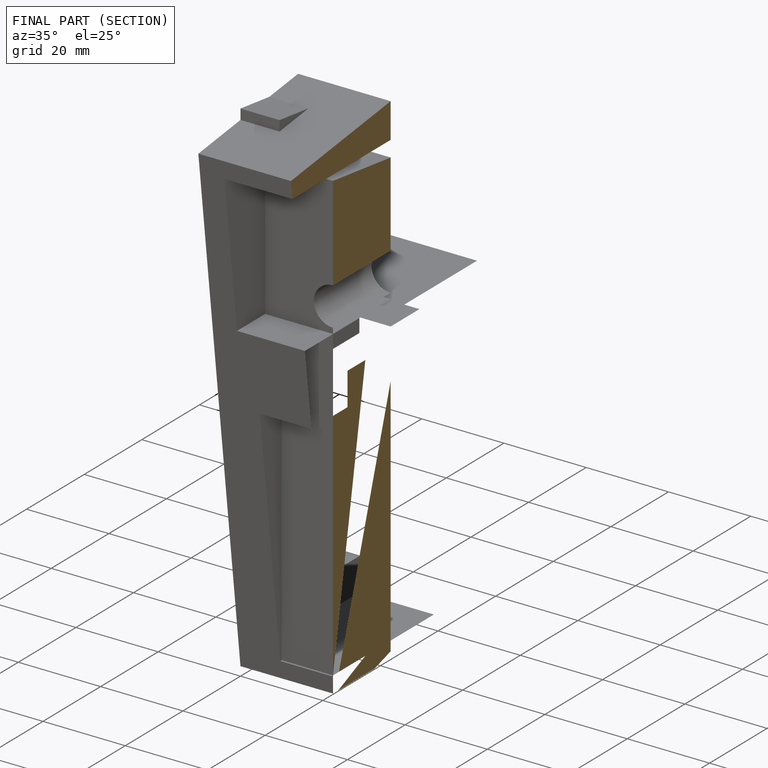
[diagram: finished part — half-section view (interior)]
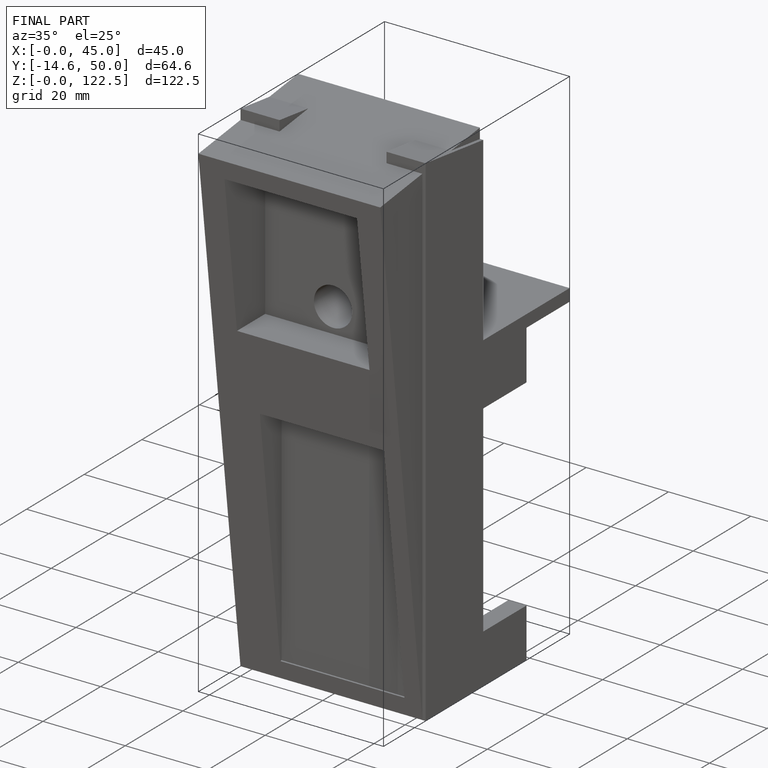
[diagram: finished part — iso view with bounding-box wireframe]
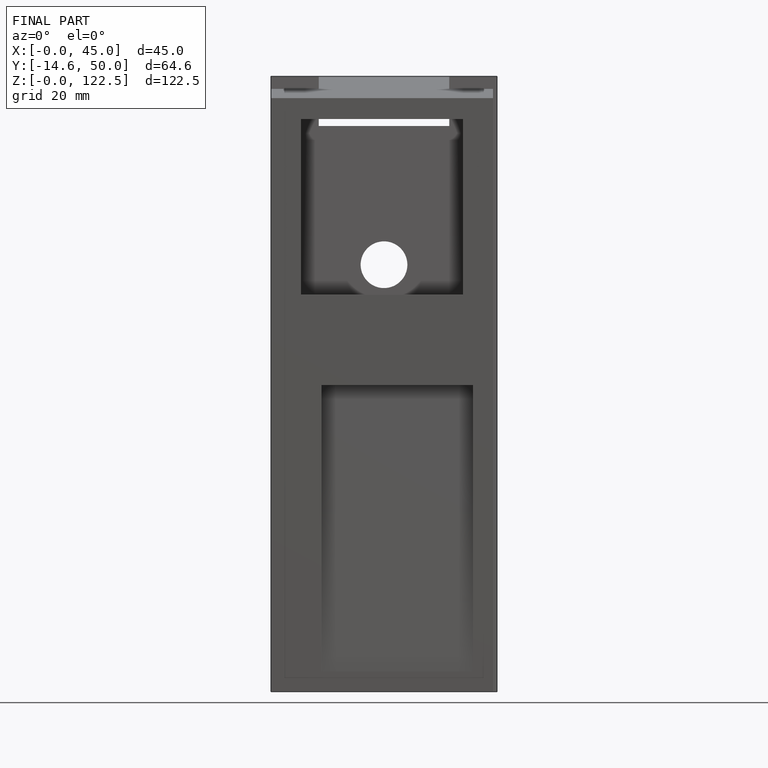
[diagram: finished part — front view with bounding-box wireframe]
